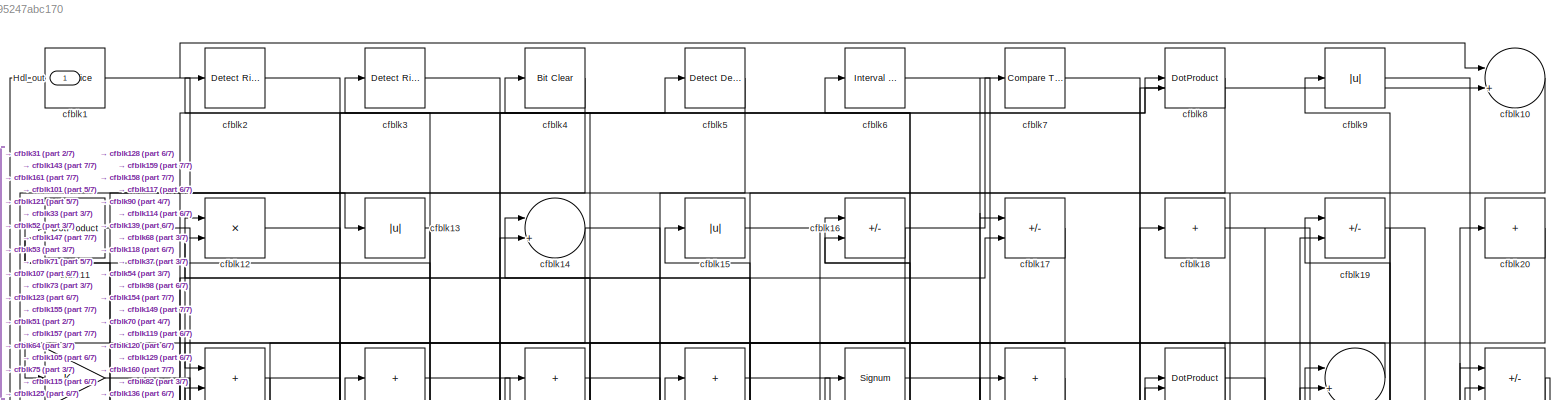
[diagram: root canvas - part 1/7, full width, top band]
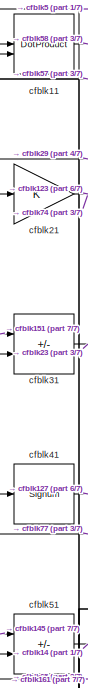
[diagram: root canvas - part 2/7, top left region]
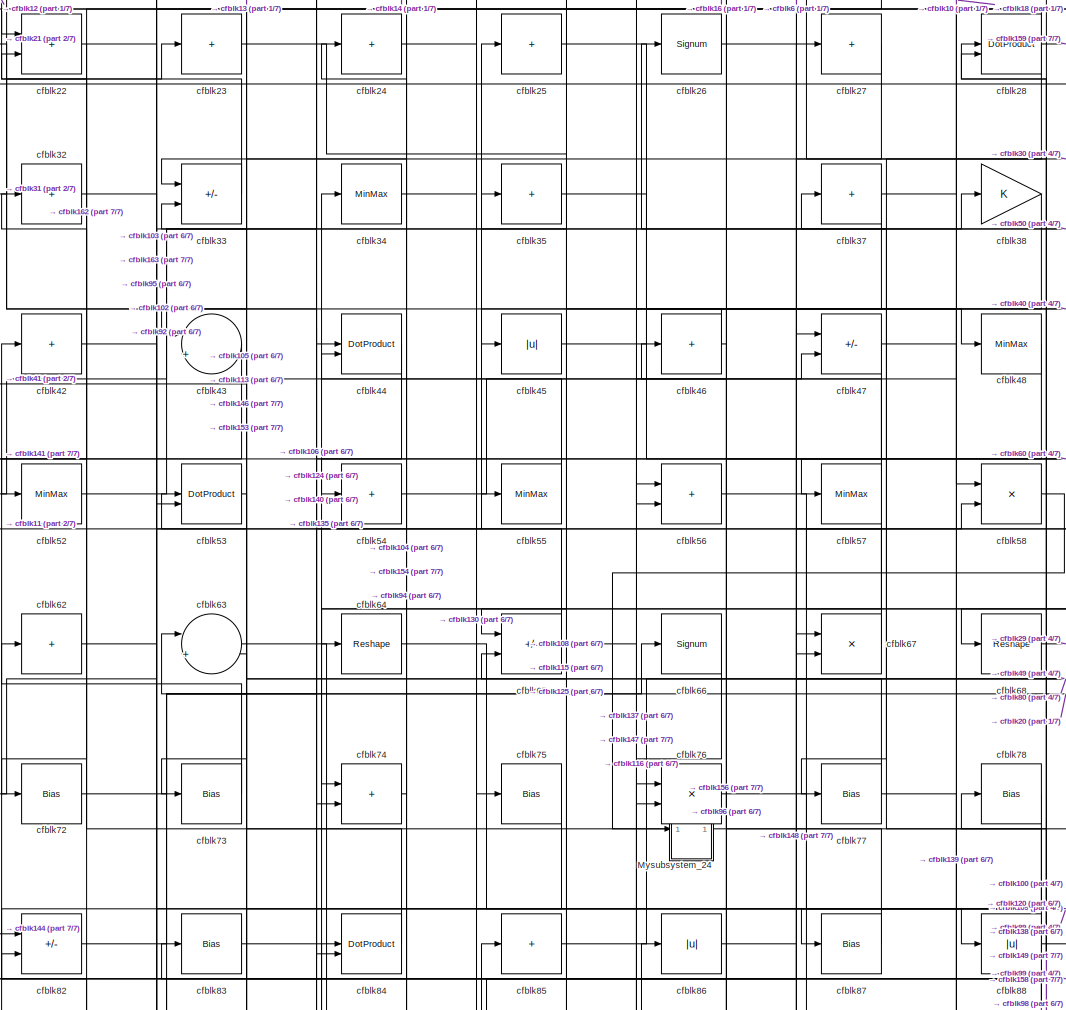
[diagram: root canvas - part 3/7, top center region]
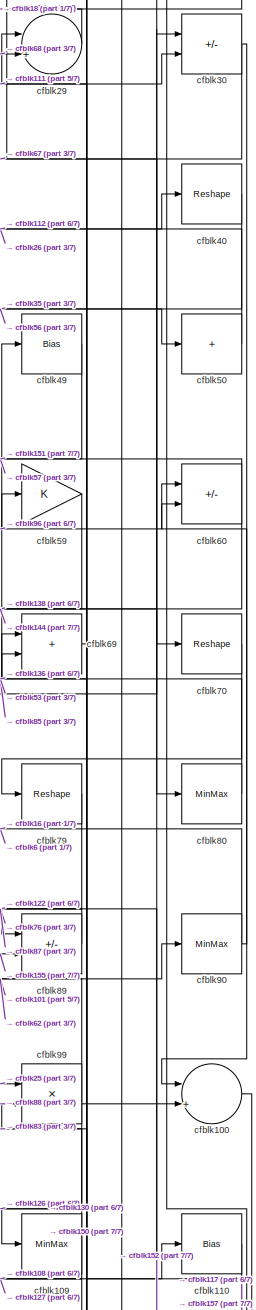
[diagram: root canvas - part 4/7, middle right region]
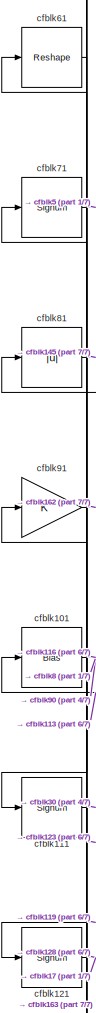
[diagram: root canvas - part 5/7, middle left region]
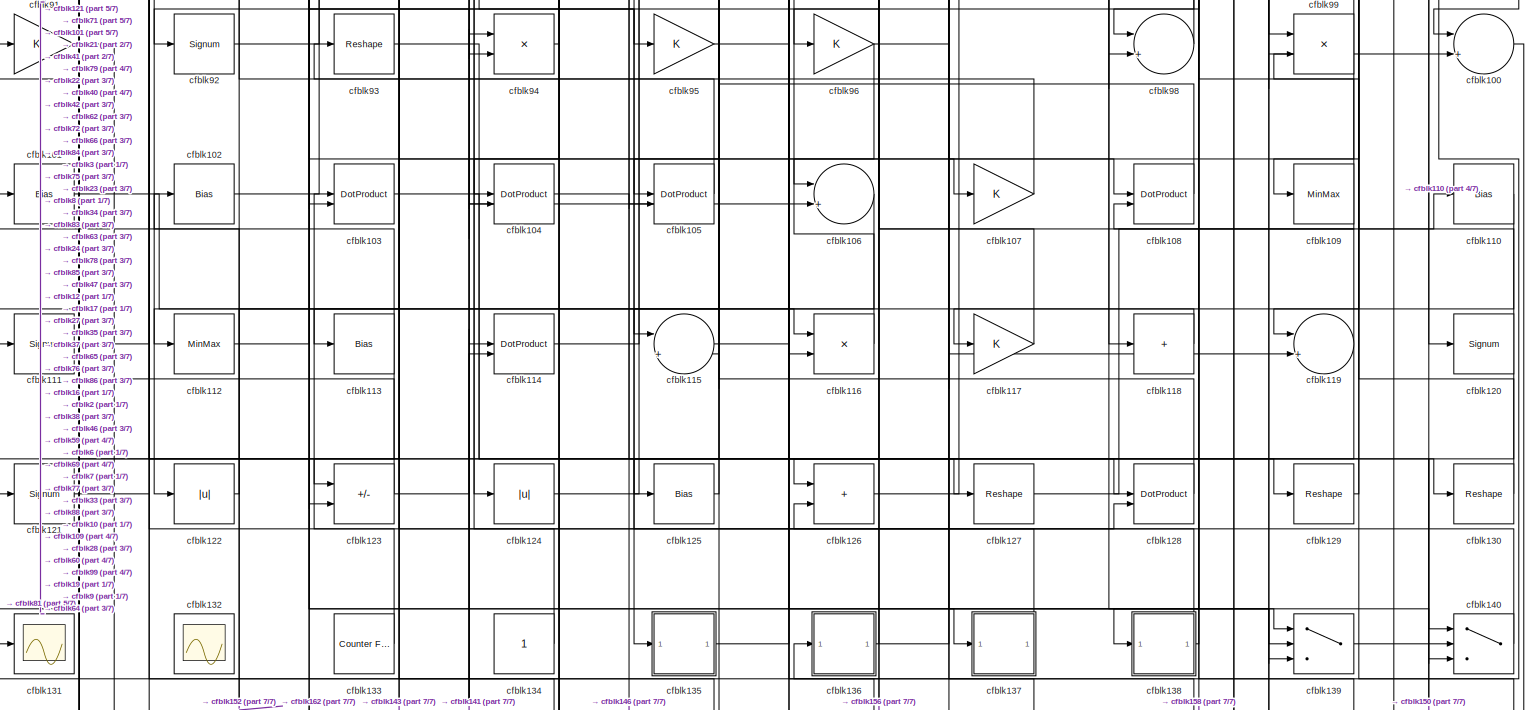
[diagram: root canvas - part 6/7, full width, bottom band]
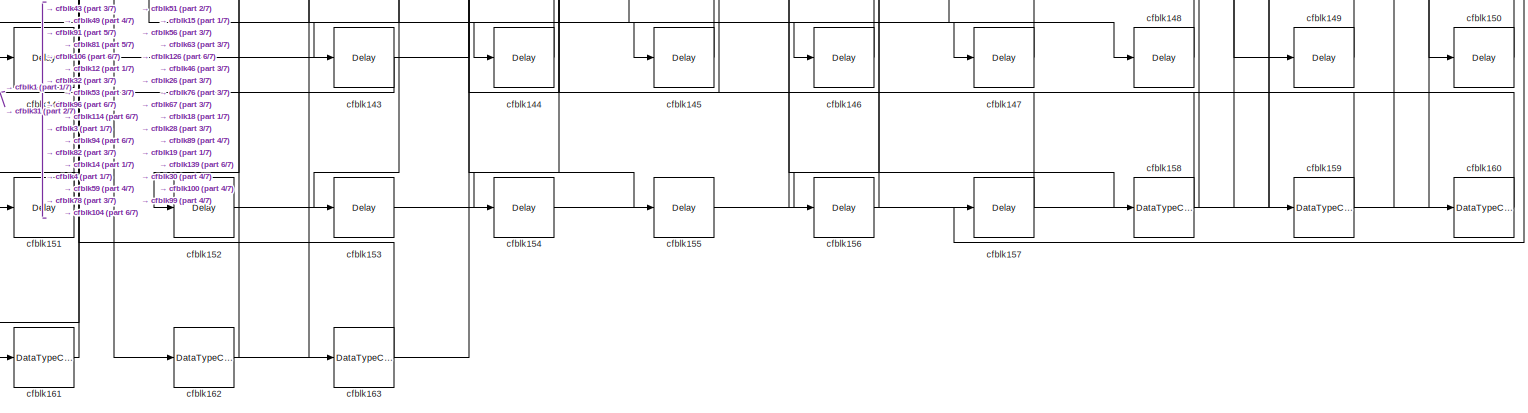
[diagram: root canvas - part 7/7, full width, bottom band]
MODEL slx_195247abc170
KIND model
CONFIG AbsTol = auto
CONFIG EnableMultiTasking = off
CONFIG FixedStep = auto
CONFIG MaxStep = auto
CONFIG MinStep = auto
CONFIG RelTol = 1e-3
CONFIG SampleTimeConstraint = Unconstrained
CONFIG SolverName = VariableStepAuto
CONFIG StartTime = 0.0
CONFIG StopTime = 10.0
BLOCK [Outport] Hdl_out
  OutDataTypeStr = uint8
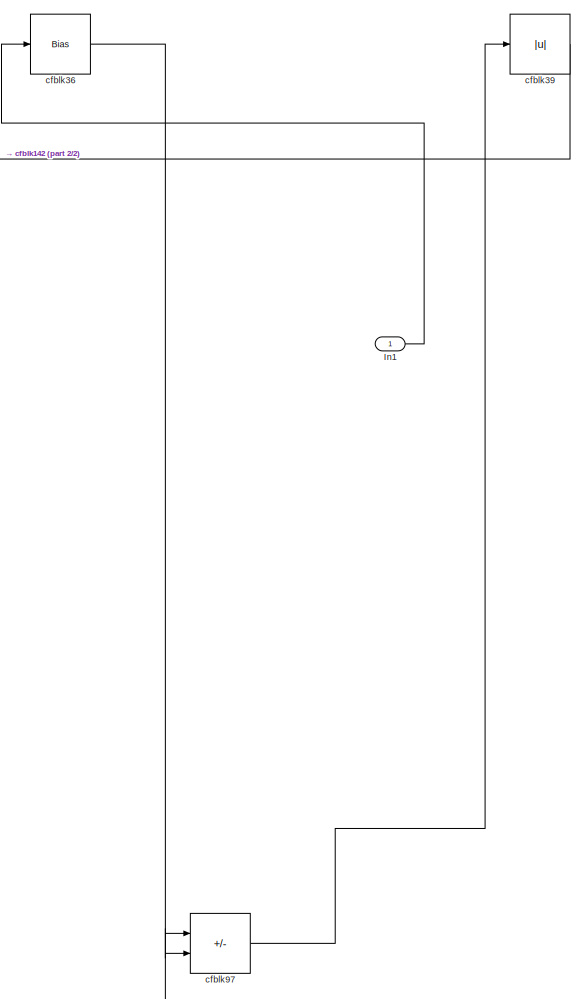
[diagram: Mysubsystem_24 - part 1/2, top right region]
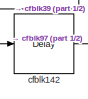
[diagram: Mysubsystem_24 - part 2/2, bottom left region]
BLOCK [SubSystem] Mysubsystem_24
  RTWFcnName = Mysubsystem_24
  RTWFcnNameOpts = User specified
  RTWFileNameOpts = Use function name
  RTWSystemCode = Reusable function
  TreatAsAtomicUnit = on
BLOCK [Inport] Mysubsystem_24/In1
BLOCK [Delay] Mysubsystem_24/cfblk142
  InputPortMap = u0
  SampleTime = 1
BLOCK [Bias] Mysubsystem_24/cfblk36
  Bias = 0.0
  SaturateOnIntegerOverflow = off
BLOCK [Abs] Mysubsystem_24/cfblk39
  SaturateOnIntegerOverflow = off
BLOCK [Sum] Mysubsystem_24/cfblk97
  IconShape = rectangular
  Inputs = +-
BLOCK [Reference] cfblk1  REF=hdlsllib/Logic and Bit
Operations/Bit Slice
  SourceBlock = hdlsllib/Logic and Bit\nOperations/Bit Slice
  SourceType = Bit Slice
BLOCK [Sum] cfblk10
  Inputs = |++
  OutDataTypeStr = uint8
BLOCK [Sum] cfblk100
  Inputs = |++
  OutDataTypeStr = uint8
BLOCK [Bias] cfblk101
  Bias = 0.0
  SaturateOnIntegerOverflow = off
BLOCK [Bias] cfblk102
  Bias = 0.0
  SaturateOnIntegerOverflow = off
BLOCK [DotProduct] cfblk103
  OutDataTypeStr = uint8
BLOCK [DotProduct] cfblk104
  OutDataTypeStr = uint8
BLOCK [DotProduct] cfblk105
  OutDataTypeStr = uint8
BLOCK [Sum] cfblk106
  Inputs = |++
  OutDataTypeStr = uint8
BLOCK [Gain] cfblk107
  OutDataTypeStr = uint8
BLOCK [DotProduct] cfblk108
  OutDataTypeStr = uint8
BLOCK [MinMax] cfblk109
  OutDataTypeStr = uint8
BLOCK [DotProduct] cfblk11
  OutDataTypeStr = uint8
BLOCK [Bias] cfblk110
  Bias = 0.0
  SaturateOnIntegerOverflow = off
BLOCK [Signum] cfblk111
BLOCK [MinMax] cfblk112
  OutDataTypeStr = uint8
BLOCK [Bias] cfblk113
  Bias = 0.0
  SaturateOnIntegerOverflow = off
BLOCK [DotProduct] cfblk114
  OutDataTypeStr = uint8
BLOCK [Sum] cfblk115
  Inputs = |++
  OutDataTypeStr = uint8
BLOCK [Product] cfblk116
  Inputs = */
  OutDataTypeStr = uint8
  RndMeth = Zero
  SaturateOnIntegerOverflow = on
BLOCK [Gain] cfblk117
  OutDataTypeStr = uint8
BLOCK [Sum] cfblk118
  IconShape = rectangular
  Inputs = +
  OutDataTypeStr = uint8
BLOCK [Sum] cfblk119
  Inputs = |++
  OutDataTypeStr = uint8
BLOCK [Product] cfblk12
  Inputs = */
  OutDataTypeStr = uint8
  RndMeth = Zero
  SaturateOnIntegerOverflow = on
BLOCK [Signum] cfblk120
BLOCK [Signum] cfblk121
BLOCK [Abs] cfblk122
  OutDataTypeStr = uint8
  SaturateOnIntegerOverflow = off
BLOCK [Sum] cfblk123
  IconShape = rectangular
  Inputs = +-
  OutDataTypeStr = uint8
BLOCK [Abs] cfblk124
  OutDataTypeStr = uint8
  SaturateOnIntegerOverflow = off
BLOCK [Bias] cfblk125
  Bias = 0.0
  SaturateOnIntegerOverflow = off
BLOCK [Sum] cfblk126
  IconShape = rectangular
  OutDataTypeStr = uint8
BLOCK [Reshape] cfblk127
BLOCK [DotProduct] cfblk128
  OutDataTypeStr = uint8
BLOCK [Reshape] cfblk129
BLOCK [Abs] cfblk13
  OutDataTypeStr = uint8
  SaturateOnIntegerOverflow = off
BLOCK [Reshape] cfblk130
BLOCK [Scope] cfblk131
  Floating = off
  NumInputPorts = 1
  ScopeSpecificationString = Simulink.scopes.TimeScopeBlockCfg('CurrentConfiguration', extmgr.ConfigurationSet(extmgr.Configuration('Core','General UI',true),extmgr.Configuration('Core','Source UI',true),extmgr.Configuration('Sources','WiredSimulink',true,'DataLoggingVariableName','ScopeData2','DataLoggingSaveFormat','Array','DataLoggingLimitDataPoints',true,'DataLoggingDecimation','1'),extmgr.Configuration('Visuals','Time Do...<+868ch>
BLOCK [Scope] cfblk132
  Floating = on
  NumInputPorts = 1
  ScopeSpecificationString = Simulink.scopes.TimeScopeBlockCfg('CurrentConfiguration', extmgr.ConfigurationSet(extmgr.Configuration('Core','General UI',true,'FigureColor',[0.156862745098039 0.156862745098039 0.156862745098039]),extmgr.Configuration('Core','Source UI',true),extmgr.Configuration('Sources','WiredSimulink',true,'DataLoggingVariableName','ScopeData1','DataLoggingSaveFormat','StructureWithTime','DataLoggingLimitDat...<+2713ch>
BLOCK [Reference] cfblk133  REF=hdlsllib/Sources/Counter
Free-Running
  SourceBlock = hdlsllib/Sources/Counter\nFree-Running
  SourceType = Counter Free-Running
BLOCK [Constant] cfblk134
  OutDataTypeStr = uint8
  SampleTime = -1
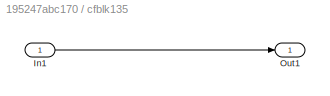
BLOCK [SubSystem] cfblk135
  LibrarySourceBlock = hdlsllib/Ports &\nSubsystems/Subsystem
BLOCK [Inport] cfblk135/In1
BLOCK [Outport] cfblk135/Out1
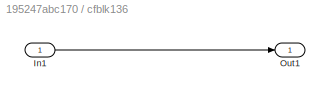
BLOCK [SubSystem] cfblk136
  LibrarySourceBlock = hdlsllib/Ports &\nSubsystems/Subsystem
BLOCK [Inport] cfblk136/In1
BLOCK [Outport] cfblk136/Out1
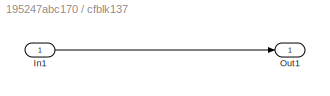
BLOCK [SubSystem] cfblk137
  LibrarySourceBlock = hdlsllib/Ports &\nSubsystems/Subsystem
BLOCK [Inport] cfblk137/In1
BLOCK [Outport] cfblk137/Out1
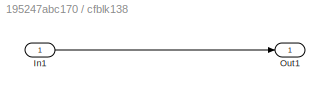
BLOCK [SubSystem] cfblk138
  LibrarySourceBlock = hdlsllib/Ports &\nSubsystems/Subsystem
BLOCK [Inport] cfblk138/In1
BLOCK [Outport] cfblk138/Out1
BLOCK [Switch] cfblk139
  InputSameDT = off
  OutDataTypeStr = uint8
  SaturateOnIntegerOverflow = off
BLOCK [Sum] cfblk14
  Inputs = |++
  OutDataTypeStr = uint8
BLOCK [Switch] cfblk140
  InputSameDT = off
  OutDataTypeStr = uint8
  SaturateOnIntegerOverflow = off
BLOCK [Delay] cfblk141
  InputPortMap = u0
  SampleTime = 1
BLOCK [Delay] cfblk143
  InputPortMap = u0
  SampleTime = 1
BLOCK [Delay] cfblk144
  InputPortMap = u0
  SampleTime = 1
BLOCK [Delay] cfblk145
  InputPortMap = u0
  SampleTime = 1
BLOCK [Delay] cfblk146
  InputPortMap = u0
  SampleTime = 1
BLOCK [Delay] cfblk147
  InputPortMap = u0
  SampleTime = 1
BLOCK [Delay] cfblk148
  InputPortMap = u0
  SampleTime = 1
BLOCK [Delay] cfblk149
  InputPortMap = u0
  SampleTime = 1
BLOCK [Abs] cfblk15
  OutDataTypeStr = uint8
  SaturateOnIntegerOverflow = off
BLOCK [Delay] cfblk150
  InputPortMap = u0
  SampleTime = 1
BLOCK [Delay] cfblk151
  InputPortMap = u0
  SampleTime = 1
BLOCK [Delay] cfblk152
  InputPortMap = u0
  SampleTime = 1
BLOCK [Delay] cfblk153
  InputPortMap = u0
  SampleTime = 1
BLOCK [Delay] cfblk154
  InputPortMap = u0
  SampleTime = 1
BLOCK [Delay] cfblk155
  InputPortMap = u0
  SampleTime = 1
BLOCK [Delay] cfblk156
  InputPortMap = u0
  SampleTime = 1
BLOCK [Delay] cfblk157
  InputPortMap = u0
  SampleTime = 1
BLOCK [DataTypeConversion] cfblk158
  OutDataTypeStr = uint8
  RndMeth = Floor
  SaturateOnIntegerOverflow = off
BLOCK [DataTypeConversion] cfblk159
  OutDataTypeStr = uint8
  RndMeth = Floor
  SaturateOnIntegerOverflow = off
BLOCK [Sum] cfblk16
  IconShape = rectangular
  Inputs = +-
  OutDataTypeStr = uint8
BLOCK [DataTypeConversion] cfblk160
  OutDataTypeStr = uint8
  RndMeth = Floor
  SaturateOnIntegerOverflow = off
BLOCK [DataTypeConversion] cfblk161
  OutDataTypeStr = uint8
  RndMeth = Floor
  SaturateOnIntegerOverflow = off
BLOCK [DataTypeConversion] cfblk162
  OutDataTypeStr = uint8
  RndMeth = Floor
  SaturateOnIntegerOverflow = off
BLOCK [DataTypeConversion] cfblk163
  OutDataTypeStr = uint8
  RndMeth = Floor
  SaturateOnIntegerOverflow = off
BLOCK [Sum] cfblk17
  IconShape = rectangular
  Inputs = +-
  OutDataTypeStr = uint8
BLOCK [Sum] cfblk18
  IconShape = rectangular
  Inputs = +
  OutDataTypeStr = uint8
BLOCK [Sum] cfblk19
  IconShape = rectangular
  Inputs = +-
  OutDataTypeStr = uint8
BLOCK [Reference] cfblk2  REF=hdlsllib/Logic and Bit
Operations/Detect Rise
Positive
  SourceBlock = hdlsllib/Logic and Bit\nOperations/Detect Rise\nPositive
  SourceType = Detect Rise Positive
BLOCK [Sum] cfblk20
  IconShape = rectangular
  Inputs = +
  OutDataTypeStr = uint8
BLOCK [Gain] cfblk21
  OutDataTypeStr = uint8
BLOCK [Sum] cfblk22
  IconShape = rectangular
  OutDataTypeStr = uint8
BLOCK [Sum] cfblk23
  IconShape = rectangular
  Inputs = +
  OutDataTypeStr = uint8
BLOCK [Sum] cfblk24
  IconShape = rectangular
  Inputs = +
  OutDataTypeStr = uint8
BLOCK [Sum] cfblk25
  IconShape = rectangular
  Inputs = +
  OutDataTypeStr = uint8
BLOCK [Signum] cfblk26
BLOCK [Sum] cfblk27
  IconShape = rectangular
  Inputs = +
  OutDataTypeStr = uint8
BLOCK [DotProduct] cfblk28
  OutDataTypeStr = uint8
BLOCK [Sum] cfblk29
  Inputs = |++
  OutDataTypeStr = uint8
BLOCK [Reference] cfblk3  REF=hdlsllib/Logic and Bit
Operations/Detect Rise
Nonnegative
  SourceBlock = hdlsllib/Logic and Bit\nOperations/Detect Rise\nNonnegative
  SourceType = Detect Rise Nonnegative
BLOCK [Sum] cfblk30
  IconShape = rectangular
  Inputs = +-
  OutDataTypeStr = uint8
BLOCK [Sum] cfblk31
  IconShape = rectangular
  Inputs = +-
  OutDataTypeStr = uint8
BLOCK [Sum] cfblk32
  IconShape = rectangular
  Inputs = +
  OutDataTypeStr = uint8
BLOCK [Sum] cfblk33
  IconShape = rectangular
  Inputs = +-
  OutDataTypeStr = uint8
BLOCK [MinMax] cfblk34
  OutDataTypeStr = uint8
BLOCK [Sum] cfblk35
  IconShape = rectangular
  Inputs = +
  OutDataTypeStr = uint8
BLOCK [Sum] cfblk37
  IconShape = rectangular
  Inputs = +
  OutDataTypeStr = uint8
BLOCK [Gain] cfblk38
  OutDataTypeStr = uint8
BLOCK [Reference] cfblk4  REF=simulink/Logic and Bit
Operations/Bit Clear
  LibrarySourceBlock = hdlsllib/Logic and Bit\nOperations/Bit Clear
  SourceBlock = simulink/Logic and Bit\nOperations/Bit Clear
  SourceType = Bit Clear
BLOCK [Reshape] cfblk40
BLOCK [Signum] cfblk41
BLOCK [Sum] cfblk42
  IconShape = rectangular
  Inputs = +
  OutDataTypeStr = uint8
BLOCK [Sum] cfblk43
  Inputs = |++
  OutDataTypeStr = uint8
BLOCK [DotProduct] cfblk44
  OutDataTypeStr = uint8
BLOCK [Abs] cfblk45
  OutDataTypeStr = uint8
  SaturateOnIntegerOverflow = off
BLOCK [Sum] cfblk46
  IconShape = rectangular
  Inputs = +
  OutDataTypeStr = uint8
BLOCK [Sum] cfblk47
  IconShape = rectangular
  Inputs = +-
  OutDataTypeStr = uint8
BLOCK [MinMax] cfblk48
  OutDataTypeStr = uint8
BLOCK [Bias] cfblk49
  Bias = 0.0
  SaturateOnIntegerOverflow = off
BLOCK [Reference] cfblk5  REF=simulink/Logic and Bit
Operations/Detect
Decrease
  LibrarySourceBlock = hdlsllib/Logic and Bit\nOperations/Detect\nDecrease
  SourceBlock = simulink/Logic and Bit\nOperations/Detect\nDecrease
  SourceType = Detect Decrease
BLOCK [Sum] cfblk50
  IconShape = rectangular
  Inputs = +
  OutDataTypeStr = uint8
BLOCK [Sum] cfblk51
  IconShape = rectangular
  Inputs = +-
  OutDataTypeStr = uint8
BLOCK [MinMax] cfblk52
  OutDataTypeStr = uint8
BLOCK [DotProduct] cfblk53
  OutDataTypeStr = uint8
BLOCK [Sum] cfblk54
  IconShape = rectangular
  Inputs = +
  OutDataTypeStr = uint8
BLOCK [MinMax] cfblk55
  OutDataTypeStr = uint8
BLOCK [Sum] cfblk56
  IconShape = rectangular
  OutDataTypeStr = uint8
BLOCK [MinMax] cfblk57
  OutDataTypeStr = uint8
BLOCK [Product] cfblk58
  Inputs = */
  OutDataTypeStr = uint8
  RndMeth = Zero
  SaturateOnIntegerOverflow = on
BLOCK [Gain] cfblk59
  OutDataTypeStr = uint8
BLOCK [Reference] cfblk6  REF=hdlsllib/Logic and Bit
Operations/Interval Test
  SourceBlock = hdlsllib/Logic and Bit\nOperations/Interval Test
  SourceType = Interval Test
BLOCK [Sum] cfblk60
  IconShape = rectangular
  Inputs = +-
  OutDataTypeStr = uint8
BLOCK [Reshape] cfblk61
BLOCK [Sum] cfblk62
  IconShape = rectangular
  Inputs = +
  OutDataTypeStr = uint8
BLOCK [Sum] cfblk63
  Inputs = |++
  OutDataTypeStr = uint8
BLOCK [Reshape] cfblk64
BLOCK [Sum] cfblk65
  IconShape = rectangular
  Inputs = +-
  OutDataTypeStr = uint8
BLOCK [Signum] cfblk66
BLOCK [Product] cfblk67
  Inputs = */
  OutDataTypeStr = uint8
  RndMeth = Zero
  SaturateOnIntegerOverflow = on
BLOCK [Reshape] cfblk68
BLOCK [Sum] cfblk69
  IconShape = rectangular
  OutDataTypeStr = uint8
BLOCK [Reference] cfblk7  REF=hdlsllib/Logic and Bit
Operations/Compare
To Zero
  SourceBlock = hdlsllib/Logic and Bit\nOperations/Compare\nTo Zero
  SourceType = Compare To Zero
BLOCK [Reshape] cfblk70
BLOCK [Signum] cfblk71
BLOCK [Bias] cfblk72
  Bias = 0.0
  SaturateOnIntegerOverflow = off
BLOCK [Bias] cfblk73
  Bias = 0.0
  SaturateOnIntegerOverflow = off
BLOCK [Sum] cfblk74
  IconShape = rectangular
  OutDataTypeStr = uint8
BLOCK [Bias] cfblk75
  Bias = 0.0
  SaturateOnIntegerOverflow = off
BLOCK [Product] cfblk76
  Inputs = */
  OutDataTypeStr = uint8
  RndMeth = Zero
  SaturateOnIntegerOverflow = on
BLOCK [Bias] cfblk77
  Bias = 0.0
  SaturateOnIntegerOverflow = off
BLOCK [Bias] cfblk78
  Bias = 0.0
  SaturateOnIntegerOverflow = off
BLOCK [Reshape] cfblk79
BLOCK [DotProduct] cfblk8
  OutDataTypeStr = uint8
BLOCK [MinMax] cfblk80
  OutDataTypeStr = uint8
BLOCK [Abs] cfblk81
  OutDataTypeStr = uint8
  SaturateOnIntegerOverflow = off
BLOCK [Sum] cfblk82
  IconShape = rectangular
  Inputs = +-
  OutDataTypeStr = uint8
BLOCK [Bias] cfblk83
  Bias = 0.0
  SaturateOnIntegerOverflow = off
BLOCK [DotProduct] cfblk84
  OutDataTypeStr = uint8
BLOCK [Sum] cfblk85
  IconShape = rectangular
  Inputs = +
  OutDataTypeStr = uint8
BLOCK [Abs] cfblk86
  OutDataTypeStr = uint8
  SaturateOnIntegerOverflow = off
BLOCK [Bias] cfblk87
  Bias = 0.0
  SaturateOnIntegerOverflow = off
BLOCK [Abs] cfblk88
  OutDataTypeStr = uint8
  SaturateOnIntegerOverflow = off
BLOCK [Sum] cfblk89
  IconShape = rectangular
  Inputs = +-
  OutDataTypeStr = uint8
BLOCK [Abs] cfblk9
  OutDataTypeStr = uint8
  SaturateOnIntegerOverflow = off
BLOCK [MinMax] cfblk90
  OutDataTypeStr = uint8
BLOCK [Gain] cfblk91
  OutDataTypeStr = uint8
BLOCK [Signum] cfblk92
BLOCK [Reshape] cfblk93
BLOCK [Product] cfblk94
  Inputs = */
  OutDataTypeStr = uint8
  RndMeth = Zero
  SaturateOnIntegerOverflow = on
BLOCK [Gain] cfblk95
  OutDataTypeStr = uint8
BLOCK [Gain] cfblk96
  OutDataTypeStr = uint8
BLOCK [Sum] cfblk98
  Inputs = |++
  OutDataTypeStr = uint8
BLOCK [Product] cfblk99
  Inputs = */
  OutDataTypeStr = uint8
  RndMeth = Zero
  SaturateOnIntegerOverflow = on
LINE Mysubsystem_24/In1:1 -> Mysubsystem_24/cfblk36:1
LINE Mysubsystem_24/cfblk142:1 -> Mysubsystem_24/cfblk97:1
LINE Mysubsystem_24/cfblk36:1 -> Mysubsystem_24/cfblk97:2
LINE Mysubsystem_24/cfblk39:1 -> Mysubsystem_24/cfblk142:1
LINE Mysubsystem_24/cfblk97:1 -> Mysubsystem_24/cfblk39:1
LINE cfblk100:1 -> cfblk157:1
NET cfblk101:1 -> cfblk116:1, cfblk8:1, cfblk90:1
LINE cfblk102:1 -> cfblk66:1
LINE cfblk103:1 -> cfblk129:1
LINE cfblk104:1 -> cfblk146:1
NET cfblk105:1 -> cfblk22:2, cfblk63:2
LINE cfblk106:1 -> cfblk152:1
LINE cfblk107:1 -> cfblk3:1
LINE cfblk108:1 -> cfblk35:1
NET cfblk109:1 -> cfblk108:2, cfblk83:1
NET cfblk10:1 -> cfblk105:2, cfblk98:1
LINE cfblk110:1 -> cfblk117:1
LINE cfblk111:1 -> cfblk30:2
LINE cfblk112:1 -> cfblk40:1
NET cfblk113:1 -> cfblk101:1, cfblk121:1
LINE cfblk114:1 -> cfblk17:1
LINE cfblk115:1 -> cfblk47:2
LINE cfblk116:1 -> cfblk86:1
LINE cfblk117:1 -> cfblk2:1
LINE cfblk118:1 -> cfblk112:1
NET cfblk119:1 -> cfblk131:1, cfblk81:1
LINE cfblk11:1 -> cfblk58:1
NET cfblk120:1 -> cfblk140:3, cfblk19:1
NET cfblk121:1 -> cfblk128:2, cfblk17:2, cfblk61:1
LINE cfblk122:1 -> cfblk102:1
NET cfblk123:1 -> cfblk71:1, cfblk8:2
LINE cfblk124:1 -> cfblk47:1
LINE cfblk125:1 -> cfblk65:2
LINE cfblk126:1 -> cfblk60:1
LINE cfblk127:1 -> cfblk110:1
LINE cfblk128:1 -> cfblk12:2
LINE cfblk129:1 -> cfblk9:1
LINE cfblk12:1 -> cfblk147:1
LINE cfblk130:1 -> cfblk69:2
LINE cfblk133:1 -> cfblk103:1
LINE cfblk134:1 -> cfblk93:1
LINE cfblk135/In1:1 -> cfblk135/Out1:1
LINE cfblk135:1 -> cfblk76:2
LINE cfblk136/In1:1 -> cfblk136/Out1:1
NET cfblk136:1 -> cfblk16:1, cfblk69:1
LINE cfblk137/In1:1 -> cfblk137/Out1:1
LINE cfblk137:1 -> cfblk85:1
LINE cfblk138/In1:1 -> cfblk138/Out1:1
NET cfblk138:1 -> cfblk28:1, cfblk46:1
LINE cfblk139:1 -> cfblk150:1
LINE cfblk13:1 -> cfblk73:1
LINE cfblk140:1 -> cfblk34:1
LINE cfblk141:1 -> cfblk94:1
LINE cfblk143:1 -> cfblk1:1
LINE cfblk144:1 -> cfblk82:1
LINE cfblk145:1 -> cfblk51:1
LINE cfblk146:1 -> cfblk63:1
LINE cfblk147:1 -> cfblk76:1
LINE cfblk148:1 -> cfblk67:1
LINE cfblk149:1 -> cfblk28:2
NET cfblk14:1 -> cfblk52:1, cfblk75:1
LINE cfblk150:1 -> cfblk99:2
LINE cfblk151:1 -> cfblk31:1
LINE cfblk152:1 -> cfblk30:1
LINE cfblk153:1 -> cfblk56:1
LINE cfblk154:1 -> cfblk19:2
LINE cfblk155:1 -> cfblk89:2
LINE cfblk156:1 -> cfblk126:2
LINE cfblk157:1 -> cfblk14:1
NET cfblk158:1 -> cfblk114:1, cfblk78:1
LINE cfblk159:1 -> cfblk15:1
LINE cfblk15:1 -> cfblk158:1
LINE cfblk160:1 -> cfblk4:1
LINE cfblk161:1 -> cfblk51:2
NET cfblk162:1 -> cfblk114:2, cfblk82:2
LINE cfblk163:1 -> cfblk91:1
NET cfblk16:1 -> cfblk53:2, cfblk7:1
LINE cfblk17:1 -> cfblk125:1
NET cfblk18:1 -> cfblk149:1, cfblk70:1
NET cfblk19:1 -> cfblk119:1, cfblk160:1
NET cfblk1:1 -> cfblk10:1, cfblk13:1
LINE cfblk20:1 -> cfblk64:1
NET cfblk21:1 -> cfblk123:2, cfblk74:2
NET cfblk22:1 -> cfblk72:1, cfblk95:1
NET cfblk23:1 -> cfblk106:2, cfblk65:1
NET cfblk24:1 -> cfblk104:1, cfblk88:1
LINE cfblk25:1 -> cfblk99:1
LINE cfblk26:1 -> cfblk148:1
NET cfblk27:1 -> cfblk115:2, cfblk43:1
NET cfblk28:1 -> cfblk159:1, cfblk22:1, cfblk77:1
LINE cfblk29:1 -> cfblk21:1
LINE cfblk2:1 -> cfblk107:1
NET cfblk30:1 -> cfblk100:1, cfblk67:2
LINE cfblk31:1 -> cfblk23:1
LINE cfblk32:1 -> cfblk163:1
LINE cfblk33:1 -> cfblk12:1
LINE cfblk34:1 -> cfblk130:1
LINE cfblk35:1 -> cfblk50:1
NET cfblk37:1 -> cfblk105:1, cfblk10:2
LINE cfblk38:1 -> cfblk106:1
LINE cfblk3:1 -> cfblk155:1
LINE cfblk40:1 -> cfblk56:2
LINE cfblk41:1 -> cfblk127:1
LINE cfblk42:1 -> cfblk94:2
LINE cfblk43:1 -> cfblk141:1
LINE cfblk44:1 -> cfblk54:1
LINE cfblk45:1 -> cfblk48:1
NET cfblk46:1 -> cfblk156:1, cfblk45:1
NET cfblk47:1 -> cfblk96:1, cfblk98:2
LINE cfblk48:1 -> cfblk84:2
LINE cfblk49:1 -> cfblk151:1
LINE cfblk4:1 -> cfblk161:1
LINE cfblk50:1 -> cfblk26:1
LINE cfblk51:1 -> cfblk14:2
LINE cfblk52:1 -> cfblk38:1
LINE cfblk53:1 -> cfblk153:1
LINE cfblk54:1 -> cfblk18:1
LINE cfblk55:1 -> cfblk33:1
NET cfblk56:1 -> cfblk27:1, cfblk80:1
NET cfblk57:1 -> cfblk11:1, cfblk74:1
LINE cfblk58:1 -> Mysubsystem_24:1
LINE cfblk59:1 -> cfblk144:1
LINE cfblk5:1 -> cfblk31:2
NET cfblk60:1 -> cfblk138:1, cfblk57:1
LINE cfblk61:1 -> cfblk111:1
NET cfblk62:1 -> cfblk140:2, cfblk58:2
NET cfblk63:1 -> cfblk135:1, cfblk55:1
LINE cfblk64:1 -> cfblk120:1
NET cfblk65:1 -> cfblk11:2, cfblk137:1
LINE cfblk66:1 -> cfblk116:2
LINE cfblk67:1 -> cfblk25:1
LINE cfblk68:1 -> cfblk29:2
LINE cfblk69:1 -> cfblk109:1
NET cfblk6:1 -> cfblk139:3, cfblk68:1
LINE cfblk70:1 -> cfblk79:1
LINE cfblk71:1 -> cfblk5:1
NET cfblk72:1 -> cfblk139:2, cfblk44:1
LINE cfblk73:1 -> cfblk42:1
LINE cfblk74:1 -> cfblk44:2
LINE cfblk75:1 -> cfblk113:1
LINE cfblk76:1 -> cfblk89:1
NET cfblk77:1 -> cfblk139:1, cfblk41:1
NET cfblk78:1 -> cfblk103:2, cfblk154:1
LINE cfblk79:1 -> cfblk122:1
LINE cfblk7:1 -> cfblk118:1
NET cfblk80:1 -> cfblk29:1, cfblk53:1
LINE cfblk81:1 -> cfblk145:1
LINE cfblk82:1 -> cfblk20:1
LINE cfblk83:1 -> cfblk124:1
LINE cfblk84:1 -> cfblk43:2
LINE cfblk85:1 -> cfblk49:1
LINE cfblk86:1 -> cfblk108:1
LINE cfblk87:1 -> cfblk32:1
NET cfblk88:1 -> cfblk100:2, cfblk37:1, cfblk92:1
LINE cfblk89:1 -> cfblk87:1
LINE cfblk8:1 -> cfblk115:1
NET cfblk90:1 -> cfblk16:2, cfblk60:2, cfblk6:1
LINE cfblk91:1 -> cfblk162:1
LINE cfblk92:1 -> cfblk84:1
NET cfblk93:1 -> cfblk123:1, cfblk140:1
LINE cfblk94:1 -> cfblk24:1
LINE cfblk95:1 -> cfblk128:1
NET cfblk96:1 -> cfblk104:2, cfblk119:2, cfblk143:1, cfblk59:1
LINE cfblk98:1 -> cfblk33:2
NET cfblk99:1 -> cfblk126:1, cfblk62:1
LINE cfblk9:1 -> cfblk136:1
note: NET lines group one-source signal fan-out (src -> all destinations, sorted); 1:1 wires keep LINE
